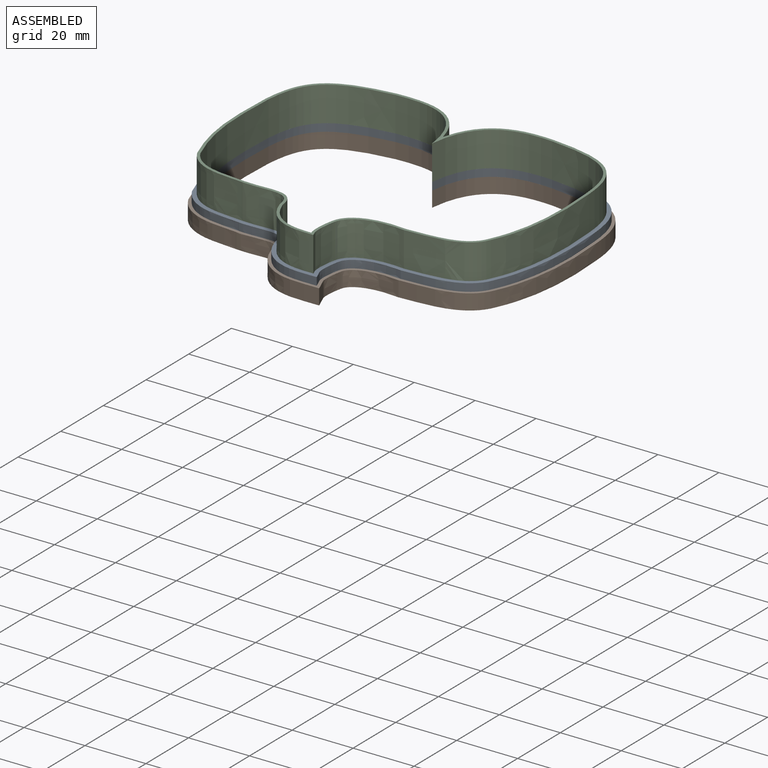
[diagram: assembled view]
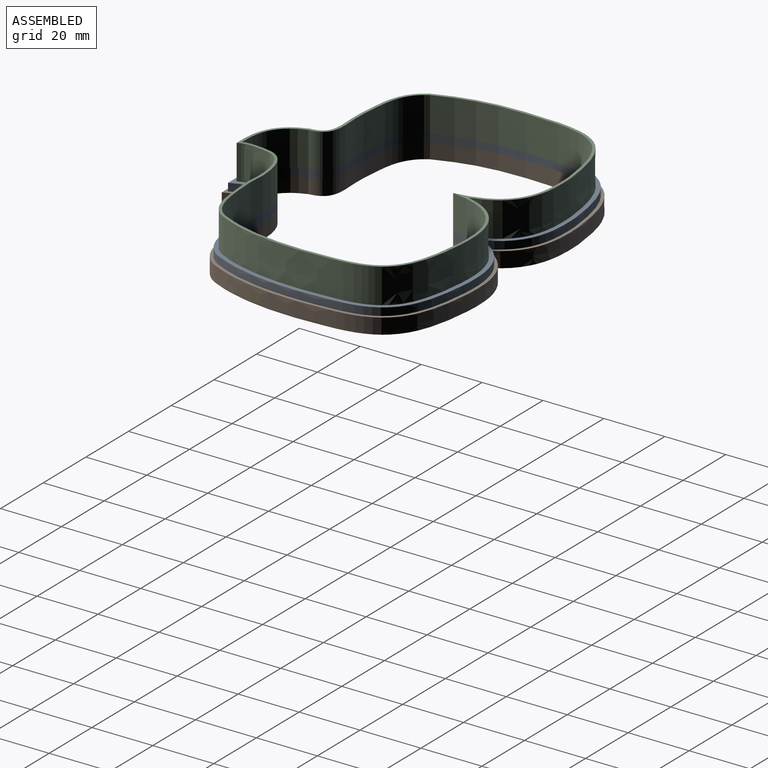
[diagram: assembled view, second angle]
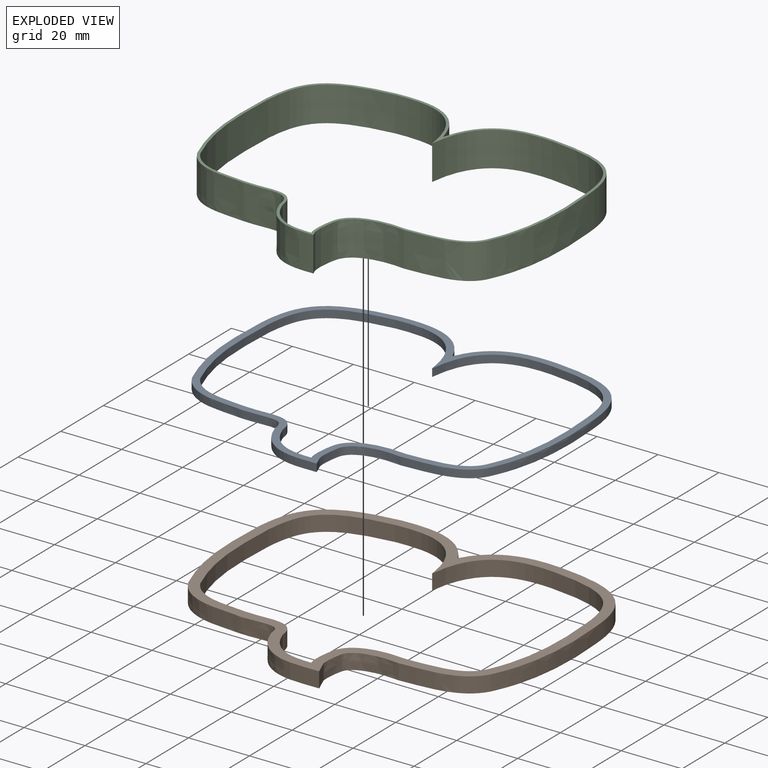
[diagram: exploded view]
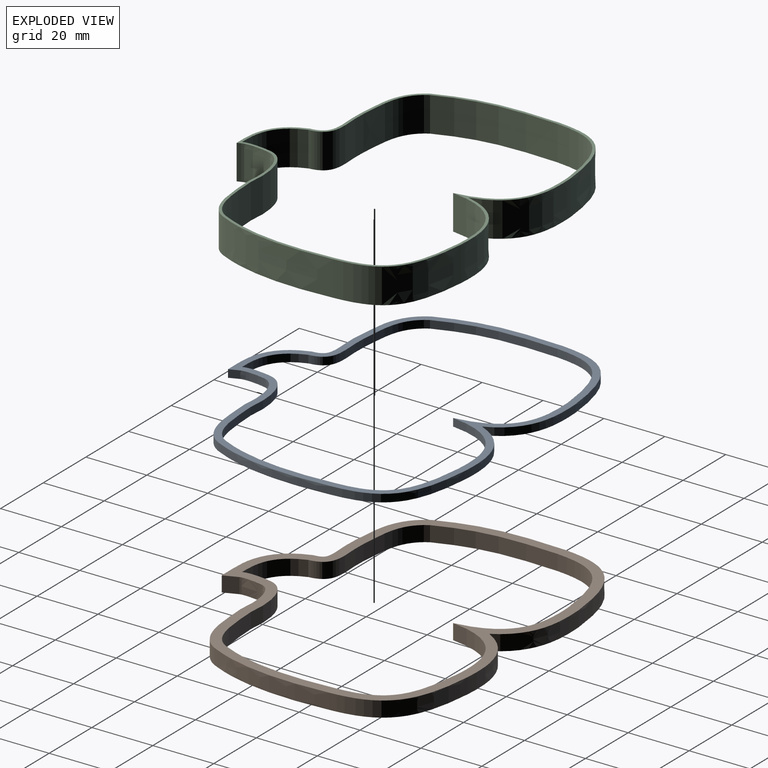
[diagram: exploded view, second angle]
ASSEMBLY  parts=3 mates=2
PART A: 26 faces, bbox 112.2x92.1x5.1 mm
  f0: plane 112.17x92.05mm, normal (0,0,1), area 803.7mm2, adj f2,f3,f4,f5,f6,f7,f8,f9
  f1: plane 112.17x92.05mm, normal (0,0,-1), area 803.7mm2, adj f2,f3,f4,f5,f6,f7,f8,f9
  f2: extruded ~25.76x12.6mm, area 78.6mm2, adj f0,f1,f3,f13
  f3: extruded ~25.98x12.53mm, area 79.1mm2, adj f0,f1,f2,f4
  f4: extruded ~28.45x24mm, area 106.6mm2, adj f0,f1,f3,f5
  f5: extruded ~39.73x5.21mm, area 102.6mm2, adj f0,f1,f4,f6
  f6: extruded ~21.75x9.05mm, area 62.9mm2, adj f0,f1,f5,f7
  f7: extruded ~14.96x4.63mm, area 45.2mm2, adj f0,f1,f6,f8
  f8: extruded ~22.14x12.02mm, area 70.2mm2, adj f0,f1,f7,f9
  f9: extruded ~11.36x2.54mm, area 30.1mm2, adj f0,f1,f8,f10
  f10: extruded ~16.82x5.46mm, area 48.1mm2, adj f0,f1,f9,f11
  f11: extruded ~24.1x9.15mm, area 69.5mm2, adj f0,f1,f10,f12
  f12: extruded ~39.66x5.44mm, area 102.7mm2, adj f0,f1,f11,f13
  f13: extruded ~28.61x24mm, area 107.5mm2, adj f0,f1,f2,f12
  f14: extruded ~25.6x19.84mm, area 94mm2, adj f0,f1,f15,f25
  f15: extruded ~25.78x19.78mm, area 94.5mm2, adj f0,f1,f14,f16
  f16: extruded ~26.34x21.89mm, area 98.3mm2, adj f0,f1,f15,f17
  f17: extruded ~38.59x5mm, area 99.7mm2, adj f0,f1,f16,f18
  f18: extruded ~20.02x7.76mm, area 57.2mm2, adj f0,f1,f17,f19
  f19: extruded ~16.88x6.44mm, area 52.3mm2, adj f0,f1,f18,f20
  f20: extruded ~16.51x10.2mm, area 53.8mm2, adj f0,f1,f19,f21
  f21: extruded ~9.64x2.54mm, area 24.8mm2, adj f0,f1,f20,f22
  f22: extruded ~19.1x7.2mm, area 56mm2, adj f0,f1,f21,f23
  f23: extruded ~21.93x7.76mm, area 62.6mm2, adj f0,f1,f22,f24
  f24: extruded ~38.59x5.26mm, area 99.9mm2, adj f0,f1,f23,f25
  f25: extruded ~26.52x21.89mm, area 99.3mm2, adj f0,f1,f14,f24
PART B: 26 faces, bbox 116.6x96.5x10 mm
  f0: plane 116.61x96.49mm, normal (0,0,1), area 1167.6mm2, adj f2,f3,f4,f5,f6,f7,f8,f9
  f1: plane 116.61x96.49mm, normal (0,0,-1), area 1167.6mm2, adj f2,f3,f4,f5,f6,f7,f8,f9
  f2: extruded ~25.84x11.22mm, area 152.4mm2, adj f0,f1,f3,f13
  f3: extruded ~26.06x11.16mm, area 153.4mm2, adj f0,f1,f2,f4
  f4: extruded ~29.38x24.94mm, area 220.5mm2, adj f0,f1,f3,f5
  f5: extruded ~40.23x5.3mm, area 207.9mm2, adj f0,f1,f4,f6
  f6: extruded ~22.53x9.62mm, area 130.9mm2, adj f0,f1,f5,f7
  f7: extruded ~14.11x5.08mm, area 83.9mm2, adj f0,f1,f6,f8
  f8: extruded ~24.64x12.83mm, area 155.1mm2, adj f0,f1,f7,f9
  f9: extruded ~12.13x5.08mm, area 64.9mm2, adj f0,f1,f8,f10
  f10: extruded ~15.81x5.08mm, area 89.2mm2, adj f0,f1,f9,f11
  f11: extruded ~25.06x9.76mm, area 145.1mm2, adj f0,f1,f10,f12
  f12: extruded ~40.14x5.53mm, area 207.8mm2, adj f0,f1,f11,f13
  f13: extruded ~29.54x24.94mm, area 222.4mm2, adj f0,f1,f2,f12
  f14: extruded ~25.6x19.84mm, area 188mm2, adj f0,f1,f15,f25
  f15: extruded ~25.78x19.78mm, area 189mm2, adj f0,f1,f14,f16
  f16: extruded ~26.34x21.89mm, area 196.6mm2, adj f0,f1,f15,f17
  f17: extruded ~38.59x5.08mm, area 199.3mm2, adj f0,f1,f16,f18
  f18: extruded ~20.02x7.76mm, area 114.5mm2, adj f0,f1,f17,f19
  f19: extruded ~16.88x6.44mm, area 104.5mm2, adj f0,f1,f18,f20
  f20: extruded ~16.51x10.2mm, area 107.6mm2, adj f0,f1,f19,f21
  f21: extruded ~9.64x5.08mm, area 49.6mm2, adj f0,f1,f20,f22
  f22: extruded ~19.1x7.2mm, area 112.1mm2, adj f0,f1,f21,f23
  f23: extruded ~21.93x7.76mm, area 125.1mm2, adj f0,f1,f22,f24
  f24: extruded ~38.59x5.26mm, area 199.8mm2, adj f0,f1,f23,f25
  f25: extruded ~26.52x21.89mm, area 198.7mm2, adj f0,f1,f14,f24
PART C: 26 faces, bbox 113.3x93.2x17.9 mm
  f0: plane 113.35x93.23mm, normal (0,0,1), area 311.4mm2, adj f2,f3,f4,f5,f6,f7,f8,f9
  f1: plane 113.35x93.23mm, normal (0,0,-1), area 311.4mm2, adj f2,f3,f4,f5,f6,f7,f8,f9
  f2: extruded ~25.66x15.68mm, area 380.9mm2, adj f0,f1,f3,f13
  f3: extruded ~25.86x15.61mm, area 383.2mm2, adj f0,f1,f2,f4
  f4: extruded ~27.16x22.71mm, area 456.8mm2, adj f0,f1,f3,f5
  f5: extruded ~39.03x11.43mm, area 453.7mm2, adj f0,f1,f4,f6
  f6: extruded ~20.69x11.43mm, area 267.6mm2, adj f0,f1,f5,f7
  f7: extruded ~16.13x11.43mm, area 222.7mm2, adj f0,f1,f6,f8
  f8: extruded ~18.7x11.43mm, area 271mm2, adj f0,f1,f7,f9
  f9: extruded ~11.43x10.31mm, area 119.4mm2, adj f0,f1,f8,f10
  f10: extruded ~18.22x11.43mm, area 238.3mm2, adj f0,f1,f9,f11
  f11: extruded ~22.78x11.43mm, area 293.6mm2, adj f0,f1,f10,f12
  f12: extruded ~39x11.43mm, area 454.4mm2, adj f0,f1,f11,f13
  f13: extruded ~27.34x22.71mm, area 461.3mm2, adj f0,f1,f2,f12
  f14: extruded ~25.6x19.84mm, area 422.9mm2, adj f0,f1,f15,f25
  f15: extruded ~25.78x19.78mm, area 425.2mm2, adj f0,f1,f14,f16
  f16: extruded ~26.34x21.89mm, area 442.3mm2, adj f0,f1,f15,f17
  f17: extruded ~38.59x11.43mm, area 448.5mm2, adj f0,f1,f16,f18
  f18: extruded ~20.02x11.43mm, area 257.6mm2, adj f0,f1,f17,f19
  f19: extruded ~16.88x11.43mm, area 235.2mm2, adj f0,f1,f18,f20
  f20: extruded ~16.51x11.43mm, area 242.1mm2, adj f0,f1,f19,f21
  f21: extruded ~11.43x9.64mm, area 111.5mm2, adj f0,f1,f20,f22
  f22: extruded ~19.1x11.43mm, area 252.2mm2, adj f0,f1,f21,f23
  f23: extruded ~21.93x11.43mm, area 281.5mm2, adj f0,f1,f22,f24
  f24: extruded ~38.59x11.43mm, area 449.5mm2, adj f0,f1,f23,f25
  f25: extruded ~26.52x21.89mm, area 447mm2, adj f0,f1,f14,f24
PLACE A t=(241.98,-29.93,5.08)mm
PLACE B at identity
PLACE C t=(124.95,8.49,7.62)mm
MATE fastened C.f1 <-> A.f0  axis (0,0,1) through (122.63,30.4,7.62)mm
MATE fastened A.f1 <-> B.f0  axis (0,0,1) through (122.63,30.4,5.08)mm
